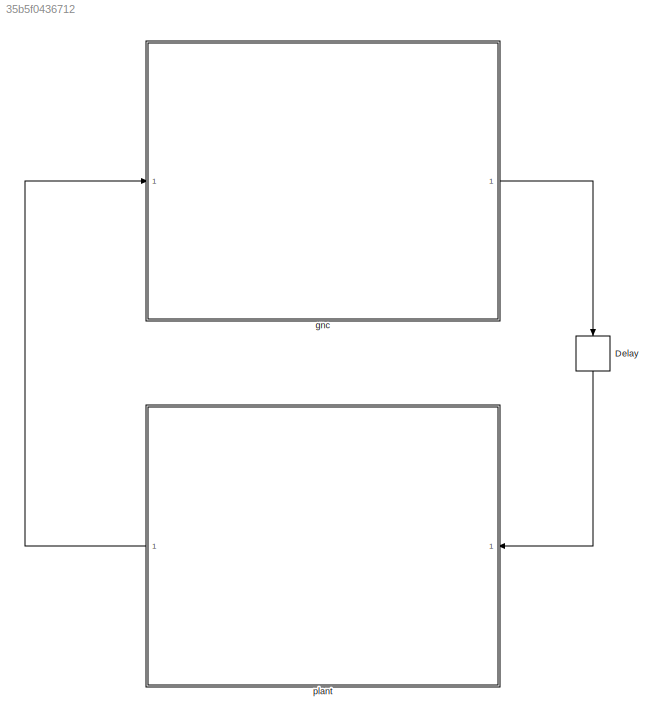
MODEL slx_35b5f0436712
KIND model
CONFIG AbsTol = auto
CONFIG EnableMultiTasking = off
CONFIG FixedStep = dt
CONFIG MaxStep = auto
CONFIG MinStep = auto
CONFIG RelTol = 1e-3
CONFIG SampleTimeConstraint = Unconstrained
CONFIG SolverName = ode4
CONFIG StartTime = 0.0
CONFIG StopTime = t_duration
BLOCK [Delay] Delay
  DelayLength = 1
  InputPortMap = u0
  NameLocation = left
BLOCK [ModelReference] gnc
  ModelNameDialog = gnc
  ModelReferenceVersion = 1.17
BLOCK [ModelReference] plant
  ModelNameDialog = plant
  ModelReferenceVersion = 1.67
LINE Delay:1 -> plant:1
LINE gnc:1 -> Delay:1
LINE plant:1 -> gnc:1
